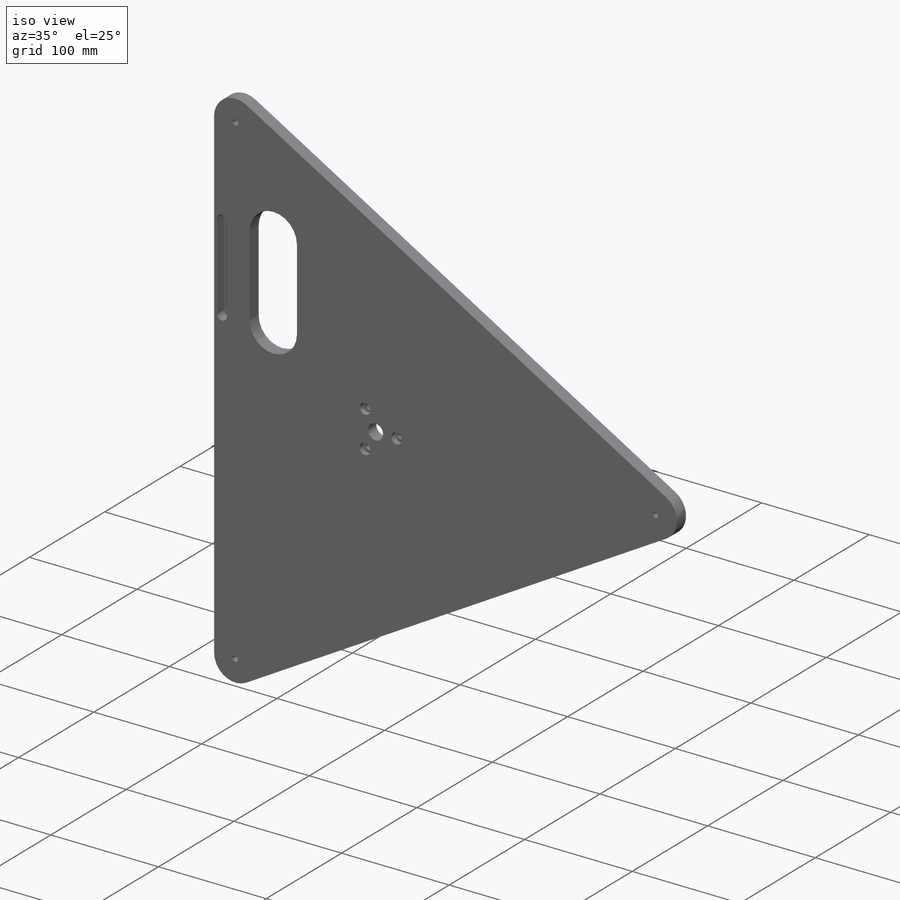
[diagram: iso view]
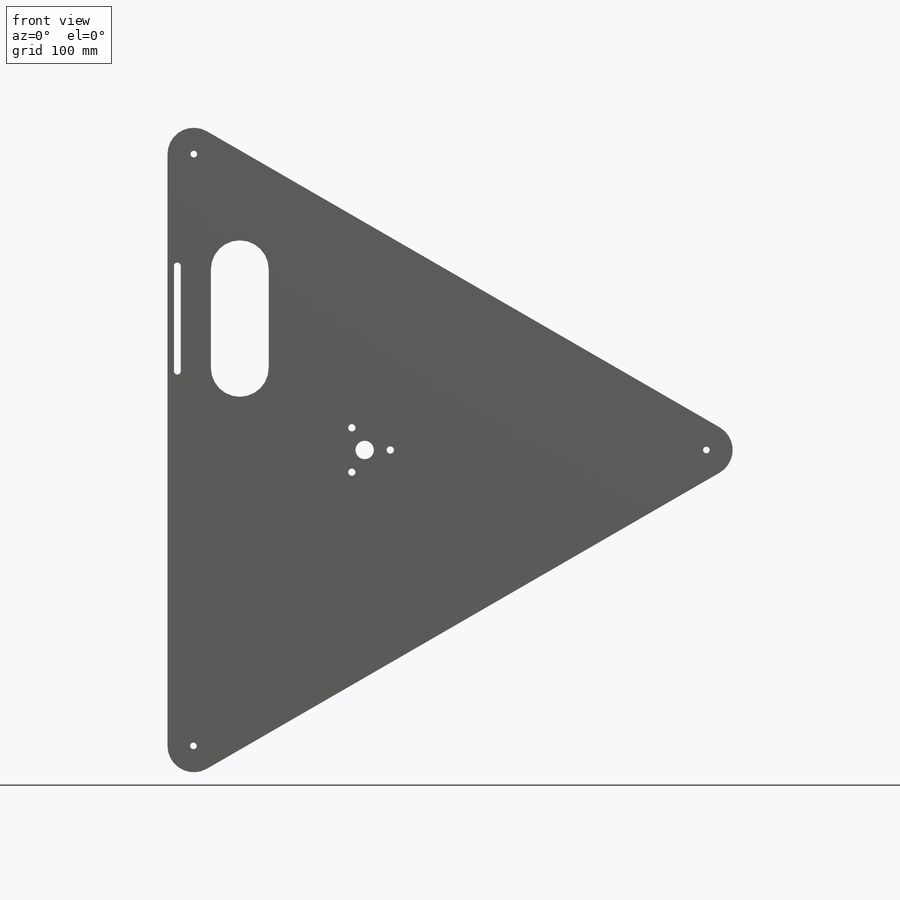
[diagram: front view]
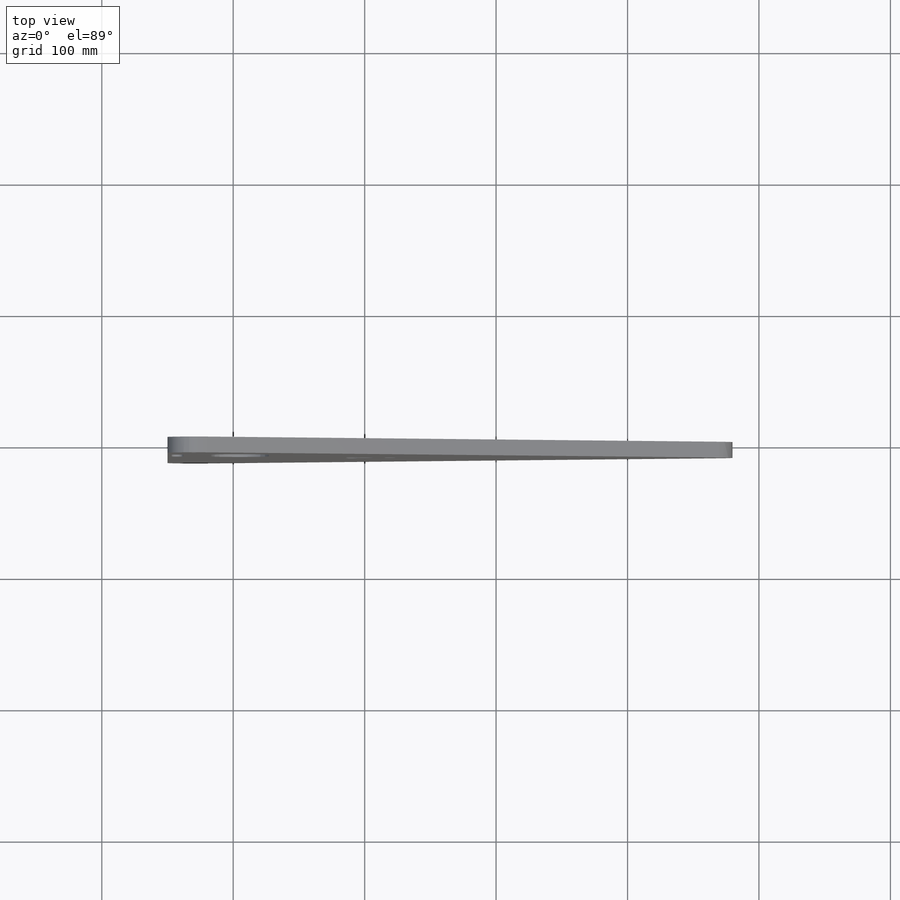
[diagram: top view]
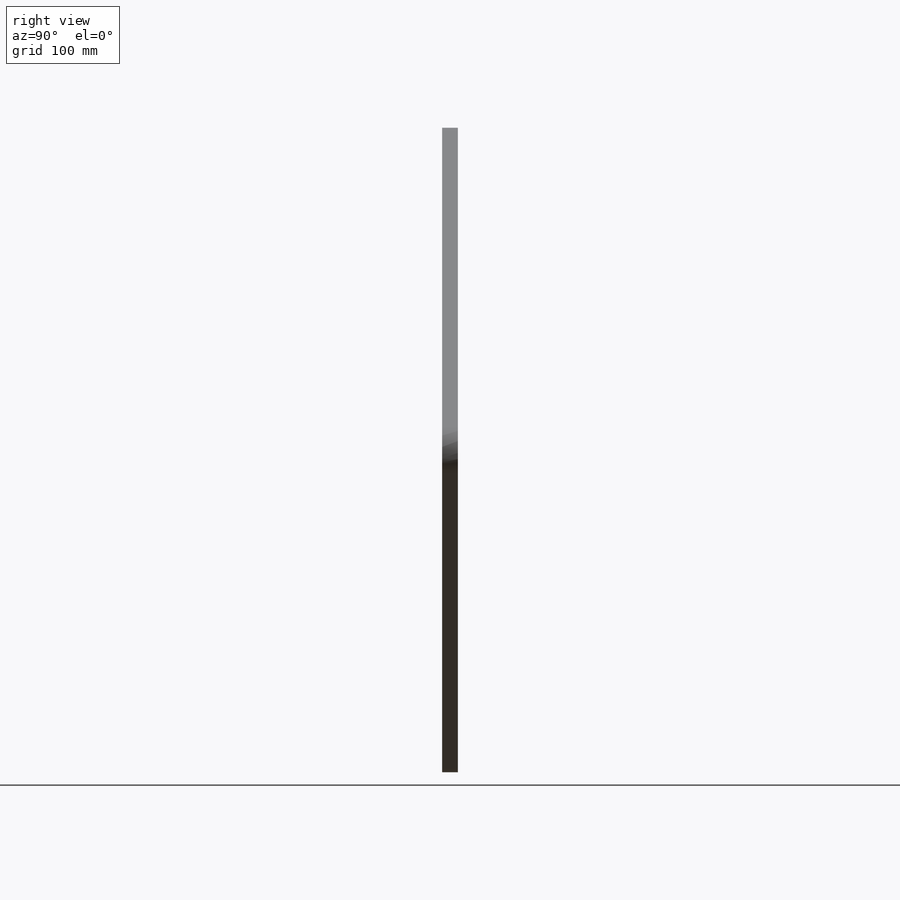
[diagram: right view]
SOLIDWORKS PART (.sldprt)
format: sldprt  version: not decoded by parser v0  size: 355,328 bytes
history: native  units: mm
features: sketch x12, cut_extrude x5, plane x3, hole x3, thread x3, material x1, extrude x1, pattern_circular x1 (+13 scaffold rows collapsed)
feature tree (42):
  scaffold x13  (default folders/planes/origin — collapsed)
  material  "3.1325 (EN-AW 2017A)"
  plane  "Plan de face"
  plane  "Plan de dessus"
  plane  "Plan de droite"
  sketch  "Esquisse1"  dims[D1=20.0mm D2=20.0mm]
  extrude  "Boss.-Extru.1"  Depth=12mm
  hole  "Trou taraudé M61"  Diameter=5mm Depth=12mm
  sketch  "Esquisse3"  dims[D1=0.0mm]
  sketch  "Esquisse2"  dims[hole-wizard template sketch: 59 standard entries collapsed; hole parameters kept: c18.Diamètre du trou pour taraudage jusqu'au prochain=5.0mm c18.Profondeur du trou pour taraudage jusqu'au prochain=12.0mm]
  thread  "Filetage de perçage1"  Diameter=6mm  [1 undecoded]
  hole  "Trou taraudé M62"  Diameter=5mm Depth=12mm
  sketch  "Esquisse7"
  sketch  "Esquisse6"  dims[hole-wizard template sketch: 59 standard entries collapsed; hole parameters kept: c18.Diamètre du trou pour taraudage jusqu'au prochain=5.0mm c18.Profondeur du trou pour taraudage jusqu'au prochain=12.0mm]
  thread  "Filetage de perçage2"  Diameter=6mm  [1 undecoded]
  thread  "Filetage de perçage3"  Diameter=6mm  [1 undecoded]
  hole  "Chambrage pour vis à tête hexagonale M51"  Diameter=5.5mm Depth=12mm
  sketch  "Esquisse10"  dims[D1=0.0mm D2=19.5mm]
  sketch  "Esquisse9"  dims[hole-wizard template sketch: 42 standard entries collapsed; hole parameters kept: c12.Profondeur du perçage jusqu'au prochain=12.0mm c12.Diamètre du chambrage=10.0mm c12.Profondeur du chambrage=5.0mm]
  sketch  "Esquisse11"  dims[D1=~7.661857mm]
  cut_extrude  "Enlèv. mat.-Extru.1"  [1 undecoded]
  pattern_circular  "Répétition circulaire1"  Count=3 Angle=360deg
  sketch  "Esquisse12"  dims[D1=~49.078729mm]
  cut_extrude  "Enlèv. mat.-Extru.2"  Depth=1mm
  sketch  "Esquisse15"  dims[D1=95.0mm D2=100.0mm]
  cut_extrude  "Enlèv. mat.-Extru.4"  [1 undecoded]
  sketch  "Esquisse16"  dims[D1=40.0mm D2=47.5mm D3=5.2mm]
  cut_extrude  "Enlèv. mat.-Extru.5"  [1 undecoded]
  sketch  "Esquisse17"  dims[D1=9.0mm]
  cut_extrude  "Enlèv. mat.-Extru.6"  Depth=9mm
decode coverage: 21 of 25 modeling features carry decoded parameters
note: ~ marks probable driven/reference dimensions
note: 6 parameter values undecoded
summary: no parameter record found for 3 features
note: suppression state not decoded; provenance and decode notes live in map.json
